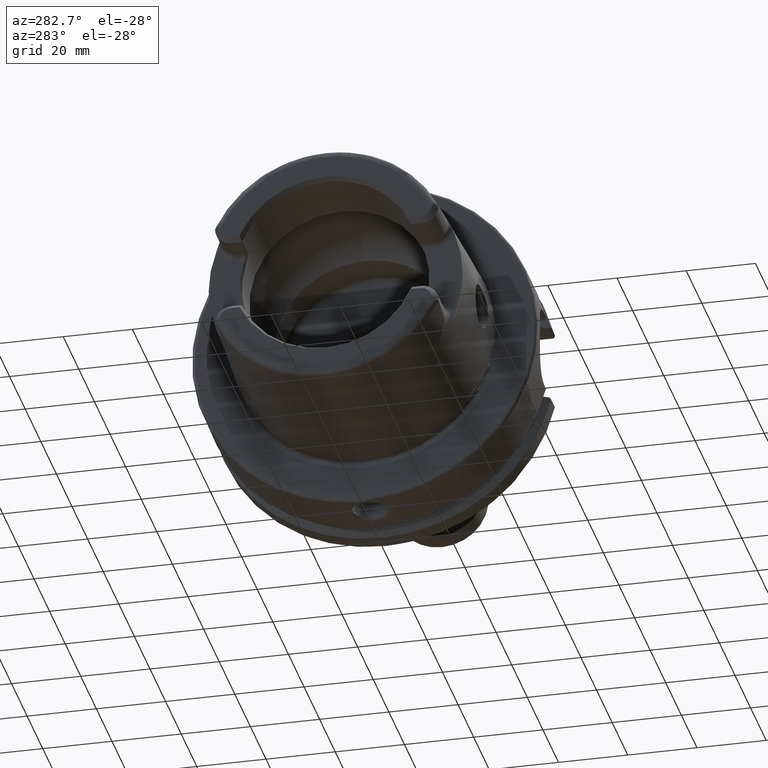
[diagram: clean part render]
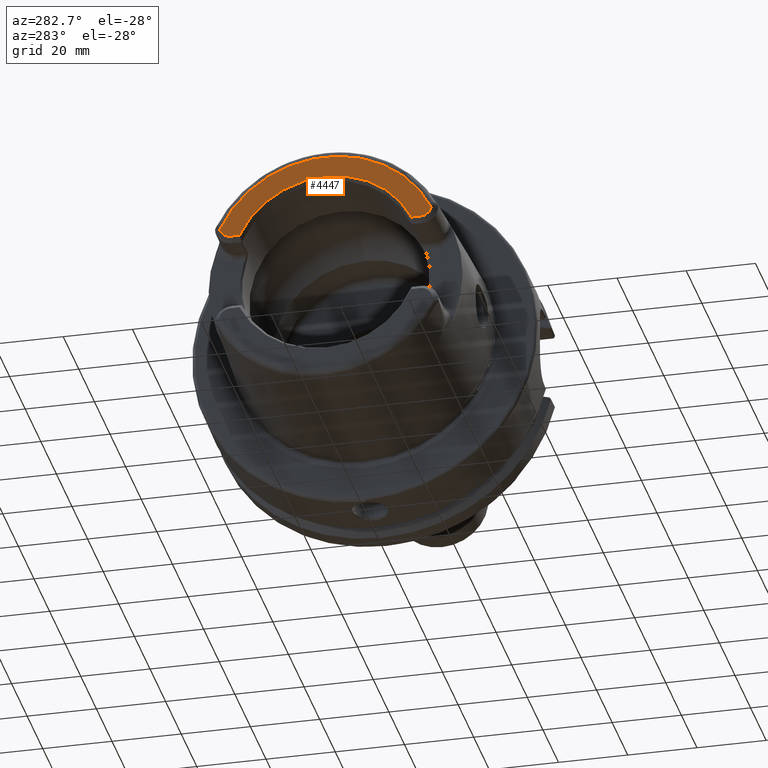
[diagram: same view with one face highlighted and labeled with its STEP entity id]
A machine part, auxiliary view. The second image highlights one B-rep face of the part: STEP entity #4447.
In plain terms, the highlighted planar face has unit normal (1, 0, 0).
Its self-contained STEP definition (entity closure, byte-faithful):
#883=CARTESIAN_POINT('',(-5.E1,2.737E1,1.489E1));
#884=DIRECTION('',(1.E0,0.E0,0.E0));
#885=DIRECTION('',(0.E0,-1.681757954462E-14,-1.E0));
#886=AXIS2_PLACEMENT_3D('',#883,#884,#885);
#888=CARTESIAN_POINT('',(-5.E1,0.E0,0.E0));
#889=DIRECTION('',(1.E0,0.E0,0.E0));
#890=DIRECTION('',(0.E0,9.107116187708E-1,4.130427912891E-1));
#891=AXIS2_PLACEMENT_3D('',#888,#889,#890);
#893=CARTESIAN_POINT('',(-5.E1,-2.737E1,1.489E1));
#894=DIRECTION('',(1.E0,0.E0,0.E0));
#895=DIRECTION('',(0.E0,-9.539066199006E-1,-3.001035829673E-1));
#896=AXIS2_PLACEMENT_3D('',#893,#894,#895);
#898=DIRECTION('',(3.074480736451E-14,1.E0,-3.493728109604E-13));
#899=VECTOR('',#898,2.542208185172E0);
#900=CARTESIAN_POINT('',(-5.E1,-2.737E1,1.151E1));
#901=LINE('',#900,#899);
#902=CARTESIAN_POINT('',(-5.E1,-2.664535259100E-14,0.E0));
#903=DIRECTION('',(-1.E0,0.E0,0.E0));
#904=DIRECTION('',(0.E0,-9.072487308075E-1,4.205945083428E-1));
#905=AXIS2_PLACEMENT_3D('',#902,#903,#904);
#907=CARTESIAN_POINT('',(-5.E1,-2.664535259100E-14,0.E0));
#908=DIRECTION('',(-1.E0,0.E0,0.E0));
#909=DIRECTION('',(0.E0,0.E0,1.E0));
#910=AXIS2_PLACEMENT_3D('',#907,#908,#909);
#912=DIRECTION('',(3.074480736451E-14,-1.E0,-3.521677934481E-13));
#913=VECTOR('',#912,2.542208185172E0);
#914=CARTESIAN_POINT('',(-5.E1,2.737E1,1.151E1));
#915=LINE('',#914,#913);
#3176=CARTESIAN_POINT('',(-5.E1,2.737E1,1.151E1));
#3177=CARTESIAN_POINT('',(-5.E1,2.482779181483E1,1.151E1));
#3178=VERTEX_POINT('',#3176);
#3179=VERTEX_POINT('',#3177);
#3180=CARTESIAN_POINT('',(-5.E1,3.059420437526E1,1.387564988957E1));
#3181=VERTEX_POINT('',#3180);
#3182=CARTESIAN_POINT('',(-5.E1,-3.059420437526E1,1.387564988957E1));
#3183=VERTEX_POINT('',#3182);
#3184=CARTESIAN_POINT('',(-5.E1,-2.737E1,1.151E1));
#3185=VERTEX_POINT('',#3184);
#3186=CARTESIAN_POINT('',(-5.E1,-2.482779181483E1,1.151E1));
#3187=VERTEX_POINT('',#3186);
#3188=CARTESIAN_POINT('',(-5.E1,-4.841869805703E-14,2.736602540378E1));
#3189=VERTEX_POINT('',#3188);
#4428=CARTESIAN_POINT('',(-5.E1,0.E0,0.E0));
#4429=DIRECTION('',(1.E0,0.E0,0.E0));
#4430=DIRECTION('',(0.E0,0.E0,1.E0));
#4431=AXIS2_PLACEMENT_3D('',#4428,#4429,#4430);
#4432=PLANE('',#4431);
#4434=ORIENTED_EDGE('',*,*,#4433,.F.);
#4436=ORIENTED_EDGE('',*,*,#4435,.T.);
#4438=ORIENTED_EDGE('',*,*,#4437,.T.);
#4439=ORIENTED_EDGE('',*,*,#4419,.T.);
#4440=ORIENTED_EDGE('',*,*,#4408,.T.);
#4442=ORIENTED_EDGE('',*,*,#4441,.T.);
#4444=ORIENTED_EDGE('',*,*,#4443,.T.);
#4445=EDGE_LOOP('',(#4434,#4436,#4438,#4439,#4440,#4442,#4444));
#4446=FACE_OUTER_BOUND('',#4445,.F.);
#4447=ADVANCED_FACE('',(#4446),#4432,.F.);
#887=CIRCLE('',#886,3.38E0);
#892=CIRCLE('',#891,3.359373455294E1);
#897=CIRCLE('',#896,3.38E0);
#906=CIRCLE('',#905,2.736602540378E1);
#911=CIRCLE('',#910,2.736602540378E1);
#4408=EDGE_CURVE('',#3185,#3187,#901,.T.);
#4419=EDGE_CURVE('',#3183,#3185,#897,.T.);
#4433=EDGE_CURVE('',#3178,#3179,#915,.T.);
#4435=EDGE_CURVE('',#3178,#3181,#887,.T.);
#4437=EDGE_CURVE('',#3181,#3183,#892,.T.);
#4441=EDGE_CURVE('',#3187,#3189,#906,.T.);
#4443=EDGE_CURVE('',#3189,#3179,#911,.T.);